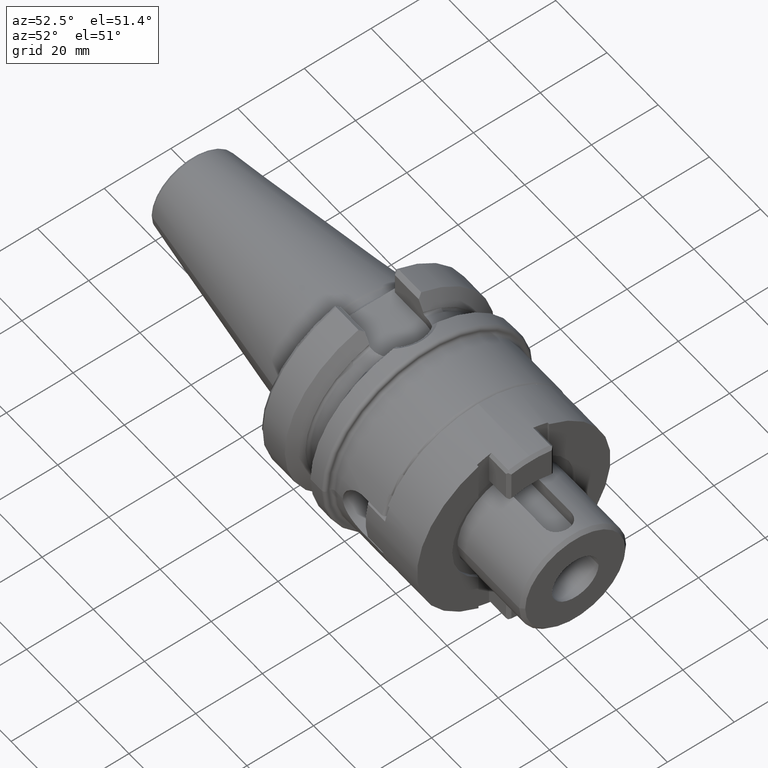
[diagram: clean part render]
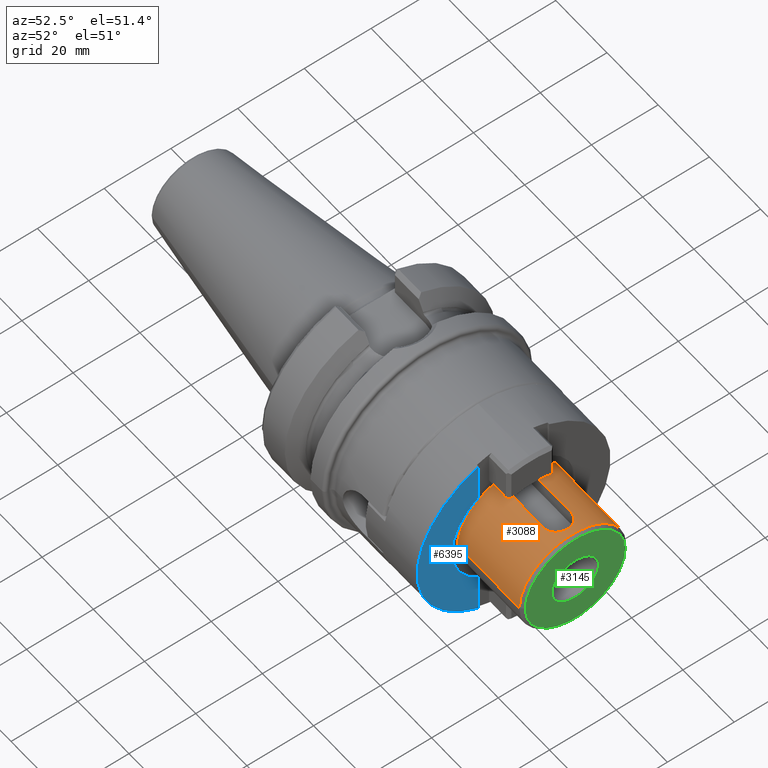
[diagram: same view with three faces highlighted in distinct colors, each labeled with its STEP entity id]
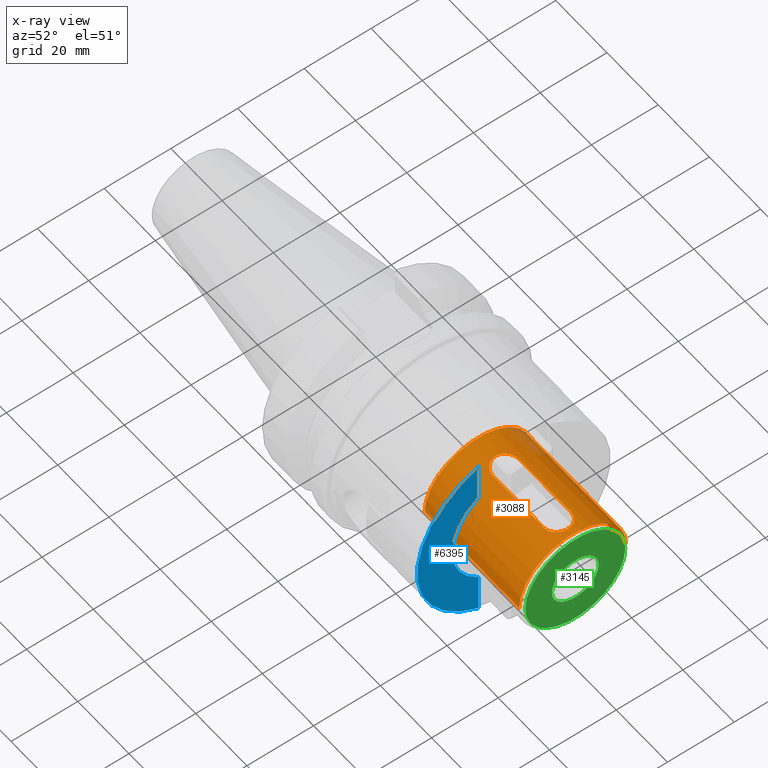
[diagram: x-ray of the same camera — body ghosted, the three highlighted faces saturated]
A machine part, auxiliary view with three faces highlighted in distinct colors.
The next image is the same camera in x-ray (body ghosted, the three faces saturated) — at least one of them is partly hidden behind the body in this view.
Their STEP definitions:

[orange] entity #3088 — the highlighted cylindrical surface (partial cylindrical patch) has radius 16 mm, axis along (1, 0, 0).
#988=CARTESIAN_POINT('',(4.6E1,0.E0,0.E0));
#989=DIRECTION('',(1.E0,0.E0,0.E0));
#990=DIRECTION('',(0.E0,1.E0,0.E0));
#991=AXIS2_PLACEMENT_3D('',#988,#989,#990);
#1022=CARTESIAN_POINT('',(8.3E1,0.E0,0.E0));
#1023=DIRECTION('',(-1.E0,0.E0,0.E0));
#1024=DIRECTION('',(0.E0,-1.E0,0.E0));
#1025=AXIS2_PLACEMENT_3D('',#1022,#1023,#1024);
#1027=CARTESIAN_POINT('',(5.7E1,4.E0,1.549193338483E1));
#1028=CARTESIAN_POINT('',(5.673905518186E1,4.E0,1.549193338483E1));
#1029=CARTESIAN_POINT('',(5.622645704127E1,3.949964306415E0,1.550498212816E1));
#1030=CARTESIAN_POINT('',(5.547318132037E1,3.725145928982E0,1.556128651757E1));
#1031=CARTESIAN_POINT('',(5.477228286388E1,3.353834282823E0,1.564668869833E1));
#1032=CARTESIAN_POINT('',(5.415305795477E1,2.847478946308E0,1.574807881569E1));
#1033=CARTESIAN_POINT('',(5.364678639004E1,2.228676297217E0,1.584875579261E1));
#1034=CARTESIAN_POINT('',(5.327540064890E1,1.527809208081E0,1.593253146921E1));
#1035=CARTESIAN_POINT('',(5.305018886306E1,7.758344788879E-1,1.598734220457E1));
#1036=CARTESIAN_POINT('',(5.297490564698E1,-1.778396357288E-6,
1.600632887953E1));
#1037=CARTESIAN_POINT('',(5.305018854901E1,-7.758333181786E-1,
1.598734227729E1));
#1038=CARTESIAN_POINT('',(5.327540296615E1,-1.527815689447E0,1.593253091778E1));
#1039=CARTESIAN_POINT('',(5.364678929142E1,-2.228680408448E0,1.584875517123E1));
#1040=CARTESIAN_POINT('',(5.415306214326E1,-2.847483254205E0,1.574807804577E1));
#1041=CARTESIAN_POINT('',(5.477228797753E1,-3.353837703543E0,1.564668795123E1));
#1042=CARTESIAN_POINT('',(5.547318725627E1,-3.725148261920E0,1.556128594950E1));
#1043=CARTESIAN_POINT('',(5.622646023942E1,-3.949964703467E0,1.550498202133E1));
#1044=CARTESIAN_POINT('',(5.673905639732E1,-4.E0,1.549193338483E1));
#1045=CARTESIAN_POINT('',(5.7E1,-4.E0,1.549193338483E1));
#1047=DIRECTION('',(1.E0,0.E0,0.E0));
#1048=VECTOR('',#1047,2.E1);
#1049=CARTESIAN_POINT('',(5.7E1,-4.E0,1.549193338483E1));
#1050=LINE('',#1049,#1048);
#1051=CARTESIAN_POINT('',(7.7E1,-4.E0,1.549193338483E1));
#1052=CARTESIAN_POINT('',(7.726094481814E1,-4.E0,1.549193338483E1));
#1053=CARTESIAN_POINT('',(7.777354295873E1,-3.949964306415E0,1.550498212816E1));
#1054=CARTESIAN_POINT('',(7.852681867963E1,-3.725145928982E0,1.556128651757E1));
#1055=CARTESIAN_POINT('',(7.922771713612E1,-3.353834282823E0,1.564668869833E1));
#1056=CARTESIAN_POINT('',(7.984694204523E1,-2.847478946308E0,1.574807881569E1));
#1057=CARTESIAN_POINT('',(8.035321360996E1,-2.228676297217E0,1.584875579261E1));
#1058=CARTESIAN_POINT('',(8.072459935110E1,-1.527809208081E0,1.593253146921E1));
#1059=CARTESIAN_POINT('',(8.094981113694E1,-7.758344788879E-1,
1.598734220457E1));
#1060=CARTESIAN_POINT('',(8.102509435302E1,1.778396365115E-6,1.600632887953E1));
#1061=CARTESIAN_POINT('',(8.094981145099E1,7.758333181785E-1,1.598734227729E1));
#1062=CARTESIAN_POINT('',(8.072459703385E1,1.527815689447E0,1.593253091778E1));
#1063=CARTESIAN_POINT('',(8.035321070858E1,2.228680408448E0,1.584875517123E1));
#1064=CARTESIAN_POINT('',(7.984693785674E1,2.847483254205E0,1.574807804577E1));
#1065=CARTESIAN_POINT('',(7.922771202247E1,3.353837703543E0,1.564668795123E1));
#1066=CARTESIAN_POINT('',(7.852681274373E1,3.725148261920E0,1.556128594950E1));
#1067=CARTESIAN_POINT('',(7.777353976058E1,3.949964703467E0,1.550498202133E1));
#1068=CARTESIAN_POINT('',(7.726094360268E1,4.E0,1.549193338483E1));
#1069=CARTESIAN_POINT('',(7.7E1,4.E0,1.549193338483E1));
#1071=DIRECTION('',(1.E0,0.E0,0.E0));
#1072=VECTOR('',#1071,2.E1);
#1073=CARTESIAN_POINT('',(5.7E1,4.E0,1.549193338483E1));
#1074=LINE('',#1073,#1072);
#1088=DIRECTION('',(-1.E0,2.984183470895E-12,1.226895620834E-11));
#1089=VECTOR('',#1088,3.700000000011E1);
#1090=CARTESIAN_POINT('',(8.300000000011E1,1.599999999989E1,
-4.539500734201E-10));
#1091=LINE('',#1090,#1089);
#1092=DIRECTION('',(-1.E0,-2.984279490184E-12,-1.226889495927E-11));
#1093=VECTOR('',#1092,3.700000000011E1);
#1094=CARTESIAN_POINT('',(8.300000000011E1,-1.599999999989E1,
4.539478072045E-10));
#1095=LINE('',#1094,#1093);
#1698=CARTESIAN_POINT('',(4.6E1,1.6E1,0.E0));
#1699=CARTESIAN_POINT('',(4.6E1,-1.6E1,0.E0));
#1700=VERTEX_POINT('',#1698);
#1701=VERTEX_POINT('',#1699);
#1710=CARTESIAN_POINT('',(8.3E1,1.6E1,0.E0));
#1711=CARTESIAN_POINT('',(8.3E1,-1.6E1,0.E0));
#1712=VERTEX_POINT('',#1710);
#1713=VERTEX_POINT('',#1711);
#1776=VERTEX_POINT('',#1027);
#1777=VERTEX_POINT('',#1045);
#1778=CARTESIAN_POINT('',(7.7E1,-4.E0,1.549193338483E1));
#1779=VERTEX_POINT('',#1778);
#1780=VERTEX_POINT('',#1069);
#3064=CARTESIAN_POINT('',(2.415E1,0.E0,0.E0));
#3065=DIRECTION('',(1.E0,0.E0,0.E0));
#3066=DIRECTION('',(0.E0,-1.E0,0.E0));
#3067=AXIS2_PLACEMENT_3D('',#3064,#3065,#3066);
#3068=CYLINDRICAL_SURFACE('',#3067,1.6E1);
#3070=ORIENTED_EDGE('',*,*,#3069,.F.);
#3072=ORIENTED_EDGE('',*,*,#3071,.T.);
#3073=ORIENTED_EDGE('',*,*,#3057,.F.);
#3075=ORIENTED_EDGE('',*,*,#3074,.F.);
#3076=EDGE_LOOP('',(#3070,#3072,#3073,#3075));
#3077=FACE_OUTER_BOUND('',#3076,.F.);
#3079=ORIENTED_EDGE('',*,*,#3078,.T.);
#3081=ORIENTED_EDGE('',*,*,#3080,.T.);
#3083=ORIENTED_EDGE('',*,*,#3082,.T.);
#3085=ORIENTED_EDGE('',*,*,#3084,.F.);
#3086=EDGE_LOOP('',(#3079,#3081,#3083,#3085));
#3087=FACE_BOUND('',#3086,.F.);
#3088=ADVANCED_FACE('',(#3077,#3087),#3068,.T.);
#992=CIRCLE('',#991,1.6E1);
#1026=CIRCLE('',#1025,1.6E1);
#1046=B_SPLINE_CURVE_WITH_KNOTS('',3,(#1027,#1028,#1029,#1030,#1031,#1032,#1033,
#1034,#1035,#1036,#1037,#1038,#1039,#1040,#1041,#1042,#1043,#1044,#1045),
.UNSPECIFIED.,.F.,.F.,(4,1,1,1,1,1,1,1,1,1,1,1,1,1,1,1,4),(0.E0,6.25E-2,1.25E-1,
1.875E-1,2.5E-1,3.125E-1,3.75E-1,4.375E-1,5.E-1,5.625E-1,6.25E-1,6.875E-1,
7.5E-1,8.125E-1,8.75E-1,9.375E-1,1.E0),.UNSPECIFIED.);
#1070=B_SPLINE_CURVE_WITH_KNOTS('',3,(#1051,#1052,#1053,#1054,#1055,#1056,#1057,
#1058,#1059,#1060,#1061,#1062,#1063,#1064,#1065,#1066,#1067,#1068,#1069),
.UNSPECIFIED.,.F.,.F.,(4,1,1,1,1,1,1,1,1,1,1,1,1,1,1,1,4),(0.E0,6.25E-2,1.25E-1,
1.875E-1,2.5E-1,3.125E-1,3.75E-1,4.375E-1,5.E-1,5.625E-1,6.25E-1,6.875E-1,
7.5E-1,8.125E-1,8.75E-1,9.375E-1,1.E0),.UNSPECIFIED.);
#3057=EDGE_CURVE('',#1700,#1701,#992,.T.);
#3069=EDGE_CURVE('',#1713,#1712,#1026,.T.);
#3071=EDGE_CURVE('',#1713,#1701,#1095,.T.);
#3074=EDGE_CURVE('',#1712,#1700,#1091,.T.);
#3078=EDGE_CURVE('',#1776,#1777,#1046,.T.);
#3080=EDGE_CURVE('',#1777,#1779,#1050,.T.);
#3082=EDGE_CURVE('',#1779,#1780,#1070,.T.);
#3084=EDGE_CURVE('',#1776,#1780,#1074,.T.);

[blue] entity #6395 — the highlighted planar face has unit normal (-1, 0, 0).
#4001=CARTESIAN_POINT('',(0.E0,0.E0,0.E0));
#4002=DIRECTION('',(0.E0,-1.E0,0.E0));
#4003=DIRECTION('',(-9.311763900474E-1,0.E0,-3.645689655172E-1));
#4004=AXIS2_PLACEMENT_3D('',#4001,#4002,#4003);
#4157=CARTESIAN_POINT('',(0.E0,0.E0,0.E0));
#4158=DIRECTION('',(0.E0,-1.E0,0.E0));
#4159=DIRECTION('',(-8.206114767436E-1,0.E0,-5.714864864865E-1));
#4160=AXIS2_PLACEMENT_3D('',#4157,#4158,#4159);
#4919=DIRECTION('',(1.E0,0.E0,0.E0));
#4920=VECTOR('',#4919,1.182280299162E1);
#4921=CARTESIAN_POINT('',(-2.700411531137E1,0.E0,-1.05725E1));
#4922=LINE('',#4921,#4920);
#4923=DIRECTION('',(1.E0,0.E0,0.E0));
#4924=VECTOR('',#4923,1.182280299162E1);
#4925=CARTESIAN_POINT('',(1.518131231976E1,0.E0,-1.05725E1));
#4926=LINE('',#4925,#4924);
#4991=CARTESIAN_POINT('',(-2.700411531137E1,0.E0,-1.05725E1));
#4992=CARTESIAN_POINT('',(-1.518131231976E1,0.E0,-1.05725E1));
#4993=VERTEX_POINT('',#4991);
#4994=VERTEX_POINT('',#4992);
#4995=CARTESIAN_POINT('',(1.518131231976E1,0.E0,-1.05725E1));
#4996=CARTESIAN_POINT('',(2.700411531137E1,0.E0,-1.05725E1));
#4997=VERTEX_POINT('',#4995);
#4998=VERTEX_POINT('',#4996);
#6384=CARTESIAN_POINT('',(-3.48E1,0.E0,-2.9E1));
#6385=DIRECTION('',(0.E0,1.E0,0.E0));
#6386=DIRECTION('',(0.E0,0.E0,1.E0));
#6387=AXIS2_PLACEMENT_3D('',#6384,#6385,#6386);
#6388=PLANE('',#6387);
#6389=ORIENTED_EDGE('',*,*,#6363,.T.);
#6390=ORIENTED_EDGE('',*,*,#5438,.T.);
#6391=ORIENTED_EDGE('',*,*,#6376,.T.);
#6392=ORIENTED_EDGE('',*,*,#5273,.F.);
#6393=EDGE_LOOP('',(#6389,#6390,#6391,#6392));
#6394=FACE_OUTER_BOUND('',#6393,.F.);
#6395=ADVANCED_FACE('',(#6394),#6388,.F.);
#4005=CIRCLE('',#4004,2.9E1);
#4161=CIRCLE('',#4160,1.85E1);
#5273=EDGE_CURVE('',#4993,#4998,#4005,.T.);
#5438=EDGE_CURVE('',#4994,#4997,#4161,.T.);
#6363=EDGE_CURVE('',#4993,#4994,#4922,.T.);
#6376=EDGE_CURVE('',#4997,#4998,#4926,.T.);

[green] entity #3145 — the highlighted planar face has unit normal (1, 0, 0).
#1096=CARTESIAN_POINT('',(8.4E1,0.E0,0.E0));
#1097=DIRECTION('',(-1.E0,0.E0,0.E0));
#1098=DIRECTION('',(0.E0,1.E0,0.E0));
#1099=AXIS2_PLACEMENT_3D('',#1096,#1097,#1098);
#1101=CARTESIAN_POINT('',(8.4E1,0.E0,0.E0));
#1102=DIRECTION('',(-1.E0,0.E0,0.E0));
#1103=DIRECTION('',(0.E0,-1.E0,0.E0));
#1104=AXIS2_PLACEMENT_3D('',#1101,#1102,#1103);
#1106=CARTESIAN_POINT('',(8.4E1,0.E0,0.E0));
#1107=DIRECTION('',(1.E0,0.E0,0.E0));
#1108=DIRECTION('',(0.E0,-1.E0,0.E0));
#1109=AXIS2_PLACEMENT_3D('',#1106,#1107,#1108);
#1111=CARTESIAN_POINT('',(8.4E1,0.E0,0.E0));
#1112=DIRECTION('',(1.E0,0.E0,0.E0));
#1113=DIRECTION('',(0.E0,1.E0,0.E0));
#1114=AXIS2_PLACEMENT_3D('',#1111,#1112,#1113);
#1714=CARTESIAN_POINT('',(8.4E1,1.5E1,0.E0));
#1715=CARTESIAN_POINT('',(8.4E1,-1.5E1,0.E0));
#1716=VERTEX_POINT('',#1714);
#1717=VERTEX_POINT('',#1715);
#1724=CARTESIAN_POINT('',(8.4E1,-7.E0,0.E0));
#1725=CARTESIAN_POINT('',(8.4E1,7.E0,0.E0));
#1726=VERTEX_POINT('',#1724);
#1727=VERTEX_POINT('',#1725);
#3130=CARTESIAN_POINT('',(8.4E1,0.E0,0.E0));
#3131=DIRECTION('',(1.E0,0.E0,0.E0));
#3132=DIRECTION('',(0.E0,-1.E0,0.E0));
#3133=AXIS2_PLACEMENT_3D('',#3130,#3131,#3132);
#3134=PLANE('',#3133);
#3135=ORIENTED_EDGE('',*,*,#3112,.T.);
#3136=ORIENTED_EDGE('',*,*,#3097,.T.);
#3137=EDGE_LOOP('',(#3135,#3136));
#3138=FACE_OUTER_BOUND('',#3137,.F.);
#3140=ORIENTED_EDGE('',*,*,#3139,.T.);
#3142=ORIENTED_EDGE('',*,*,#3141,.T.);
#3143=EDGE_LOOP('',(#3140,#3142));
#3144=FACE_BOUND('',#3143,.F.);
#3145=ADVANCED_FACE('',(#3138,#3144),#3134,.T.);
#1100=CIRCLE('',#1099,1.5E1);
#1105=CIRCLE('',#1104,1.5E1);
#1110=CIRCLE('',#1109,7.E0);
#1115=CIRCLE('',#1114,7.E0);
#3097=EDGE_CURVE('',#1717,#1716,#1105,.T.);
#3112=EDGE_CURVE('',#1716,#1717,#1100,.T.);
#3139=EDGE_CURVE('',#1726,#1727,#1110,.T.);
#3141=EDGE_CURVE('',#1727,#1726,#1115,.T.);